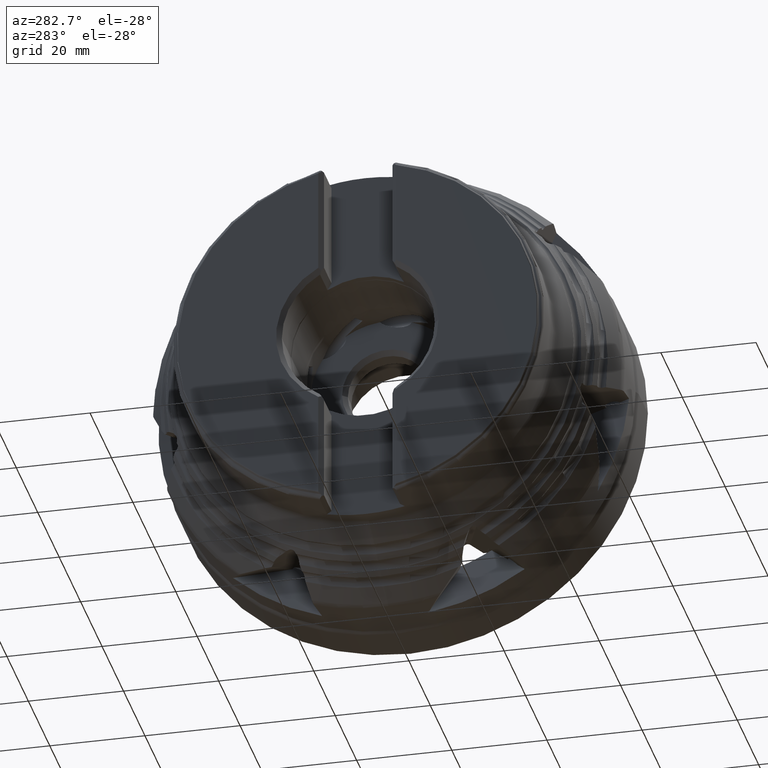
[diagram: clean part render]
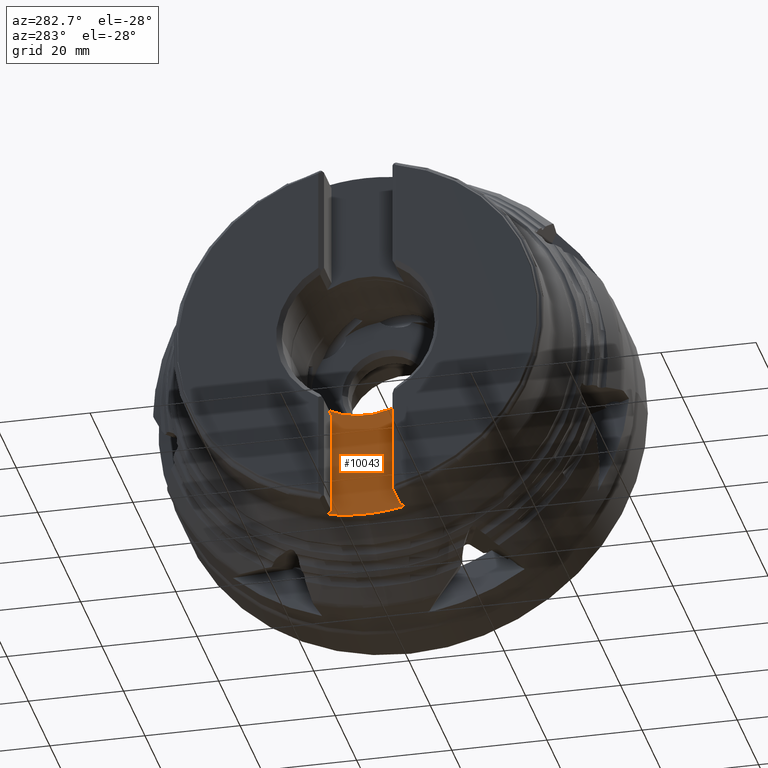
[diagram: same view with one face highlighted and labeled with its STEP entity id]
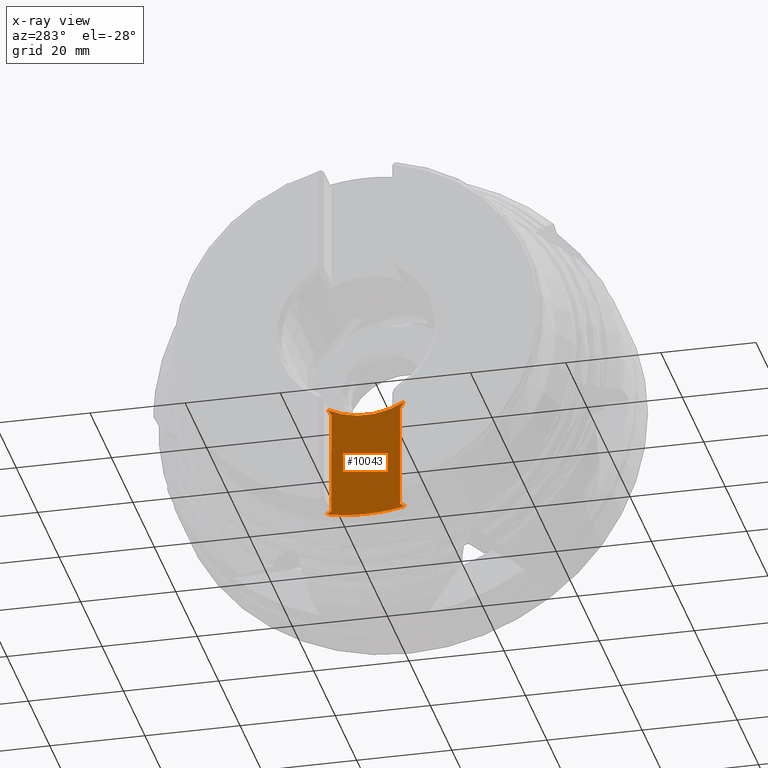
[diagram: x-ray of the same camera — body ghosted, the highlighted face saturated]
A machine part, auxiliary view. The second image highlights one B-rep face of the part: STEP entity #10043.
The next image is the same camera in x-ray: the body ghosted, the highlighted face saturated — about 0% of this face is hidden behind the body in this view.
In plain terms, the highlighted planar face has unit normal (1, 0, 0).
Its self-contained STEP definition (entity closure, byte-faithful):
#692 = CARTESIAN_POINT ( 'NONE',  ( -40.25000000000000000, -32.55176399492146500, 28.53815223310022400 ) ) ;
#693 = CARTESIAN_POINT ( 'NONE',  ( -40.25000000000000000, -40.18806956366259400, -5.072753292623979800 ) ) ;
#696 = DIRECTION ( 'NONE',  ( 0.0000000000000000000, -0.5000000000000001100, 0.8660254037844386000 ) ) ;
#1056 = VECTOR ( 'NONE', #1903, 1000.000000000000100 ) ;
#1058 = LINE ( 'NONE', #1906, #1079 ) ;
#1061 = LINE ( 'NONE', #692, #1066 ) ;
#1066 = VECTOR ( 'NONE', #696, 1000.000000000000000 ) ;
#1068 = LINE ( 'NONE', #693, #1056 ) ;
#1073 = LINE ( 'NONE', #1908, #1074 ) ;
#1074 = VECTOR ( 'NONE', #1909, 1000.000000000000000 ) ;
#1077 = LINE ( 'NONE', #1912, #1078 ) ;
#1078 = VECTOR ( 'NONE', #1913, 1000.000000000000000 ) ;
#1079 = VECTOR ( 'NONE', #1915, 1000.000000000000000 ) ;
#1081 = LINE ( 'NONE', #1916, #1082 ) ;
#1082 = VECTOR ( 'NONE', #1917, 1000.000000000000000 ) ;
#1785 = CIRCLE ( 'NONE', #5714, 16.07499999999999900 ) ;
#1796 = CIRCLE ( 'NONE', #5716, 38.99999999999999300 ) ;
#1903 = DIRECTION ( 'NONE',  ( -0.0000000000000000000, 0.8254950044722994000, -0.5644094237264988300 ) ) ;
#1906 = CARTESIAN_POINT ( 'NONE',  ( -40.25000000000000000, 30.37530472897694300, -11.78196039321593200 ) ) ;
#1908 = CARTESIAN_POINT ( 'NONE',  ( -40.25000000000000000, 7.200000000000005500, 43.17499999999999700 ) ) ;
#1909 = DIRECTION ( 'NONE',  ( -0.0000000000000000000, -0.0000000000000000000, -1.000000000000000000 ) ) ;
#1912 = CARTESIAN_POINT ( 'NONE',  ( -40.25000000000000000, -7.199999999999994800, 43.17499999999999700 ) ) ;
#1913 = DIRECTION ( 'NONE',  ( -0.0000000000000000000, -0.0000000000000000000, -1.000000000000000000 ) ) ;
#1915 = DIRECTION ( 'NONE',  ( 0.0000000000000000000, 0.8254950044723010600, 0.5644094237264963800 ) ) ;
#1916 = CARTESIAN_POINT ( 'NONE',  ( -40.25000000000000000, 28.95176399492136100, 22.30276932585255500 ) ) ;
#1917 = DIRECTION ( 'NONE',  ( -0.0000000000000000000, -0.4999999999999959500, -0.8660254037844409300 ) ) ;
#3021 = CARTESIAN_POINT ( 'NONE',  ( -40.25000000000000000, -8.037881187475951700, -13.92113828018457300 ) ) ;
#3027 = CARTESIAN_POINT ( 'NONE',  ( -40.25000000000000000, 8.037881187475916200, -13.92113828018458600 ) ) ;
#4226 = EDGE_CURVE ( 'NONE', #9766, #9720, #14268, .T. ) ;
#5714 = AXIS2_PLACEMENT_3D ( 'NONE', #6668, #6670, #6671 ) ;
#5716 = AXIS2_PLACEMENT_3D ( 'NONE', #6686, #6687, #6688 ) ;
#6668 = CARTESIAN_POINT ( 'NONE',  ( -40.25000000000000000, -4.929040574135068500E-015, 0.0000000000000000000 ) ) ;
#6670 = DIRECTION ( 'NONE',  ( -1.000000000000000000, -0.0000000000000000000, -0.0000000000000000000 ) ) ;
#6671 = DIRECTION ( 'NONE',  ( 0.0000000000000000000, 0.0000000000000000000, -1.000000000000000000 ) ) ;
#6686 = CARTESIAN_POINT ( 'NONE',  ( -40.25000000000000000, 0.0000000000000000000, 0.0000000000000000000 ) ) ;
#6687 = DIRECTION ( 'NONE',  ( -1.000000000000000000, -0.0000000000000000000, -0.0000000000000000000 ) ) ;
#6688 = DIRECTION ( 'NONE',  ( 0.0000000000000000000, -6.217248937900876600E-015, -1.000000000000000000 ) ) ;
#9117 = ORIENTED_EDGE ( 'NONE', *, *, #10378, .T. ) ;
#9124 = ORIENTED_EDGE ( 'NONE', *, *, #10387, .T. ) ;
#9129 = ORIENTED_EDGE ( 'NONE', *, *, #13382, .F. ) ;
#9170 = ORIENTED_EDGE ( 'NONE', *, *, #13389, .T. ) ;
#9179 = ORIENTED_EDGE ( 'NONE', *, *, #10385, .F. ) ;
#9227 = ORIENTED_EDGE ( 'NONE', *, *, #10380, .T. ) ;
#9257 = ORIENTED_EDGE ( 'NONE', *, *, #10386, .T. ) ;
#9291 = ORIENTED_EDGE ( 'NONE', *, *, #10383, .T. ) ;
#9310 = ORIENTED_EDGE ( 'NONE', *, *, #4226, .T. ) ;
#9720 = VERTEX_POINT ( 'NONE', #15700 ) ;
#9736 = VERTEX_POINT ( 'NONE', #15716 ) ;
#9737 = VERTEX_POINT ( 'NONE', #15717 ) ;
#9740 = VERTEX_POINT ( 'NONE', #15720 ) ;
#9741 = VERTEX_POINT ( 'NONE', #15721 ) ;
#9764 = VERTEX_POINT ( 'NONE', #15744 ) ;
#9766 = VERTEX_POINT ( 'NONE', #15746 ) ;
#10043 = ADVANCED_FACE ( 'NONE', ( #14575 ), #16780, .F. ) ;
#10378 = EDGE_CURVE ( 'NONE', #9741, #10805, #1061, .T. ) ;
#10380 = EDGE_CURVE ( 'NONE', #9737, #9764, #1068, .T. ) ;
#10383 = EDGE_CURVE ( 'NONE', #9736, #9737, #1073, .T. ) ;
#10385 = EDGE_CURVE ( 'NONE', #9741, #9740, #1077, .T. ) ;
#10386 = EDGE_CURVE ( 'NONE', #9720, #9740, #1058, .T. ) ;
#10387 = EDGE_CURVE ( 'NONE', #10811, #9736, #1081, .T. ) ;
#10805 = VERTEX_POINT ( 'NONE', #3021 ) ;
#10811 = VERTEX_POINT ( 'NONE', #3027 ) ;
#12236 = EDGE_LOOP ( 'NONE', ( #9170, #9310, #9257, #9179, #9117, #9129, #9124, #9291, #9227 ) ) ;
#13382 = EDGE_CURVE ( 'NONE', #10811, #10805, #1785, .T. ) ;
#13389 = EDGE_CURVE ( 'NONE', #9764, #9766, #1796, .T. ) ;
#14268 = CIRCLE ( 'NONE', #15072, 38.99999999999999300 ) ;
#14575 = FACE_OUTER_BOUND ( 'NONE', #12236, .T. ) ;
#15072 = AXIS2_PLACEMENT_3D ( 'NONE', #15509, #15513, #15514 ) ;
#15509 = CARTESIAN_POINT ( 'NONE',  ( -40.25000000000000000, 0.0000000000000000000, 0.0000000000000000000 ) ) ;
#15513 = DIRECTION ( 'NONE',  ( -1.000000000000000000, -0.0000000000000000000, -0.0000000000000000000 ) ) ;
#15514 = DIRECTION ( 'NONE',  ( 0.0000000000000000000, 0.0000000000000000000, -1.000000000000000000 ) ) ;
#15700 = CARTESIAN_POINT ( 'NONE',  ( -40.25000000000000000, -8.168213455382037600, -38.13502706105392500 ) ) ;
#15716 = CARTESIAN_POINT ( 'NONE',  ( -40.25000000000000000, 7.200000000000005500, -15.37239106759902200 ) ) ;
#15717 = CARTESIAN_POINT ( 'NONE',  ( -40.25000000000000000, 7.200000000000005500, -37.47303783587896900 ) ) ;
#15720 = CARTESIAN_POINT ( 'NONE',  ( -40.25000000000000000, -7.199999999999994800, -37.47303783587895500 ) ) ;
#15721 = CARTESIAN_POINT ( 'NONE',  ( -40.25000000000000000, -7.199999999999994800, -15.37239106759907200 ) ) ;
#15744 = CARTESIAN_POINT ( 'NONE',  ( -40.25000000000000000, 8.168213455382037600, -38.13502706105392500 ) ) ;
#15746 = CARTESIAN_POINT ( 'NONE',  ( -40.25000000000000000, 0.0000000000000000000, -38.99999999999999300 ) ) ;
#16332 = AXIS2_PLACEMENT_3D ( 'NONE', #16802, #16817, #16818 ) ;
#16780 = PLANE ( 'NONE',  #16332 ) ;
#16802 = CARTESIAN_POINT ( 'NONE',  ( -40.25000000000000000, -7.199999999999994800, 43.17499999999999700 ) ) ;
#16817 = DIRECTION ( 'NONE',  ( 1.000000000000000000, 0.0000000000000000000, 0.0000000000000000000 ) ) ;
#16818 = DIRECTION ( 'NONE',  ( 0.0000000000000000000, 0.0000000000000000000, -1.000000000000000000 ) ) ;